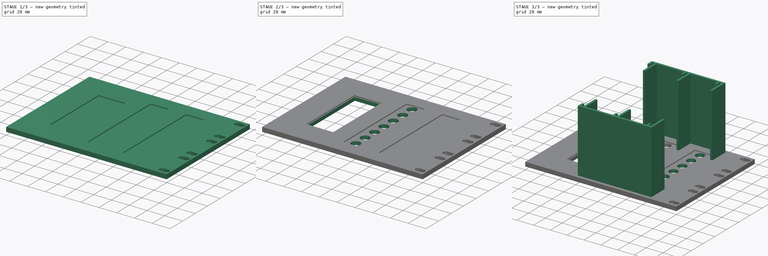
[diagram: build sequence overview — one tinted view per stage of 3, left to right]
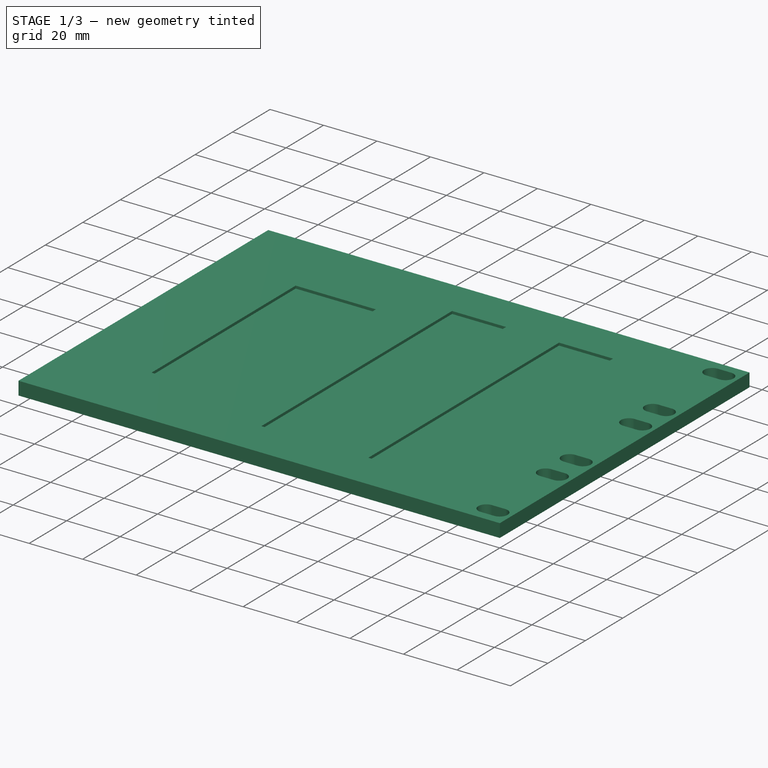
[diagram: stage 1 of 3 — iso view after this stage's code; geometry added in this stage tinted green]
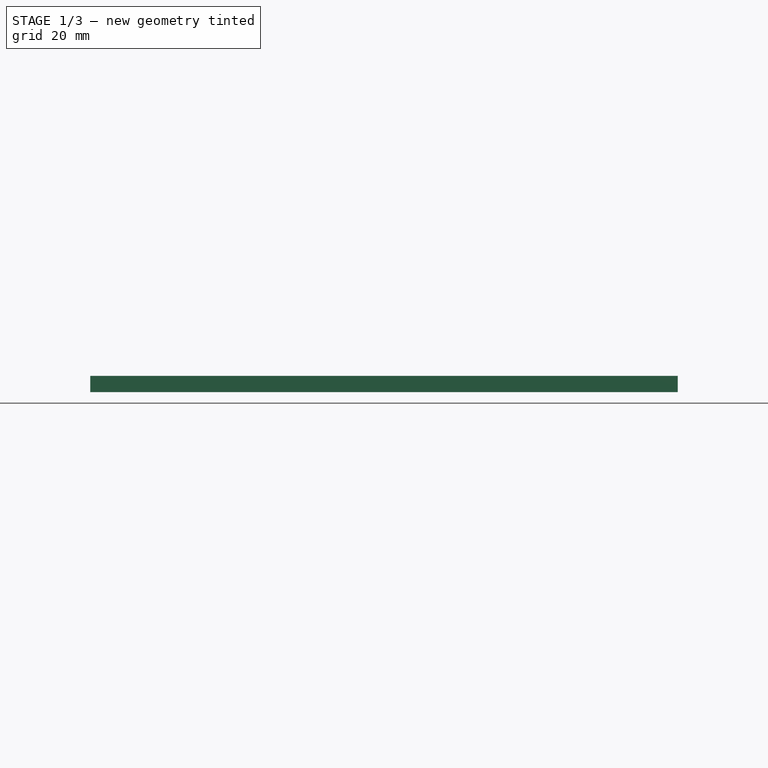
[diagram: stage 1 of 3 — front view after this stage's code; geometry added in this stage tinted green]
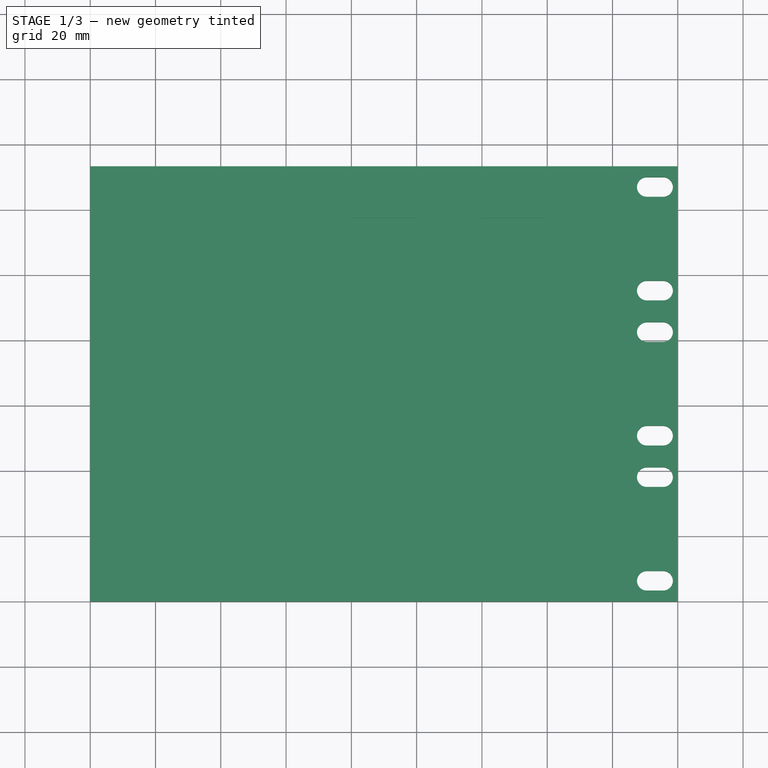
[diagram: stage 1 of 3 — top view after this stage's code; geometry added in this stage tinted green]
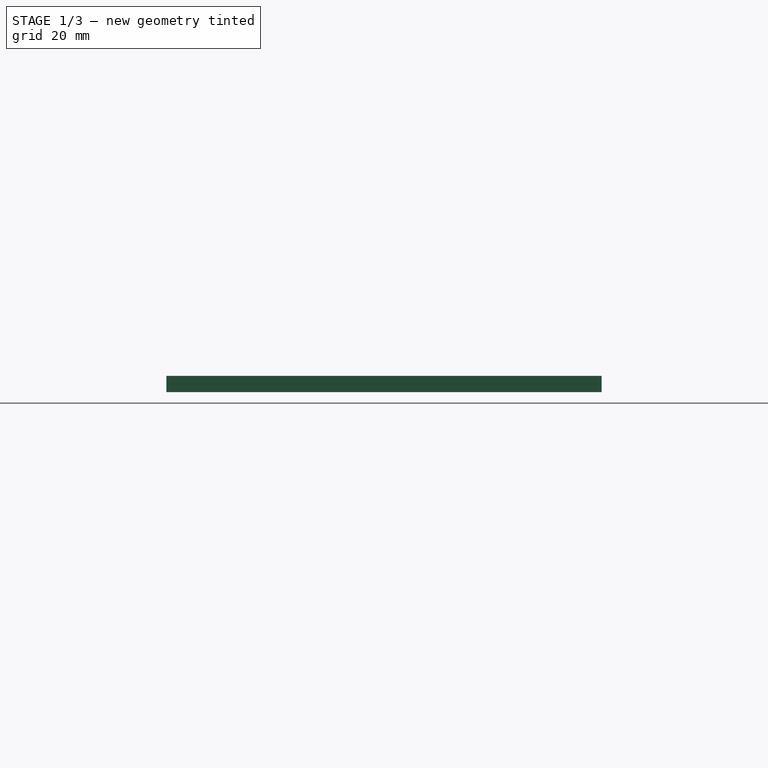
[diagram: stage 1 of 3 — right view after this stage's code; geometry added in this stage tinted green]
FCSTD DOCUMENT  (FreeCAD 1.1R20260325 (Git shallow))
Label: RackMount
License: All rights reserved
LicenseURL: https://en.wikipedia.org/wiki/All_rights_reserved
objects: Sketcher::SketchObject×6, PartDesign::Pocket×4, PartDesign::Pad×2, App::Point×1, PartDesign::Body×1
note: 31 computed .brp shape members not serialized (recipe doc carries the construction recipe); baked Part::Feature solids carry a one-line shape summary decoded from their .brp

FEATURE [App::Point] Origin001
  Role = Origin
FEATURE [Sketcher::SketchObject] Sketch  label="FrontPanel"
  ArcFitTolerance = 1e-06
  AttachmentSupport = -> [Origin]
  ExternalTypes = [0]
  FullyConstrained = true
  MakeInternals = false
  MapMode = 5
  _ExternalGeoVersion = 1
  sketch-geometry (42):
    g0: LineSegment [constr] StartX=0 StartY=0 StartZ=0 EndX=0 EndY=44.45 EndZ=0
    g1: LineSegment [constr] StartX=0 StartY=44.45 StartZ=0 EndX=-180 EndY=44.45 EndZ=0
    g2: LineSegment [constr] StartX=-180 StartY=44.45 StartZ=0 EndX=-180 EndY=0 EndZ=0
    g3: LineSegment [constr] StartX=-180 StartY=0 StartZ=0 EndX=0 EndY=0 EndZ=0
    g4: LineSegment [constr] StartX=0 StartY=44.45 StartZ=0 EndX=0 EndY=88.9 EndZ=0
    g5: LineSegment [constr] StartX=0 StartY=88.9 StartZ=0 EndX=-180 EndY=88.9 EndZ=0
    g6: LineSegment [constr] StartX=-180 StartY=88.9 StartZ=0 EndX=-180 EndY=44.45 EndZ=0
    g7: LineSegment [constr] StartX=-180 StartY=44.45 StartZ=0 EndX=0 EndY=44.45 EndZ=0
    g8: LineSegment [constr] StartX=0 StartY=88.9 StartZ=0 EndX=0 EndY=133.35 EndZ=0
    g9: LineSegment [constr] StartX=0 StartY=133.35 StartZ=0 EndX=-180 EndY=133.35 EndZ=0
    g10: LineSegment [constr] StartX=-180 StartY=133.35 StartZ=0 EndX=-180 EndY=88.9 EndZ=0
    g11: LineSegment [constr] StartX=-180 StartY=88.9 StartZ=0 EndX=0 EndY=88.9 EndZ=0
    g12: LineSegment StartX=0 StartY=0 StartZ=0 EndX=0 EndY=133.35 EndZ=0
    g13: LineSegment StartX=0 StartY=133.35 StartZ=0 EndX=-180 EndY=133.35 EndZ=0
    g14: LineSegment StartX=-180 StartY=133.35 StartZ=0 EndX=-180 EndY=0 EndZ=0
    g15: LineSegment StartX=-180 StartY=0 StartZ=0 EndX=0 EndY=0 EndZ=0
    g16: ArcOfCircle CenterX=-9.5 CenterY=127 CenterZ=0 NormalX=0 NormalY=0 NormalZ=1 AngleXU=0 Radius=3 StartAngle=1.5708 EndAngle=4.71239
    g17: ArcOfCircle CenterX=-4.5 CenterY=127 CenterZ=0 NormalX=0 NormalY=0 NormalZ=1 AngleXU=0 Radius=3 StartAngle=4.71239 EndAngle=7.85398
    g18: LineSegment StartX=-9.5 StartY=130 StartZ=0 EndX=-4.5 EndY=130 EndZ=0
    g19: LineSegment StartX=-9.5 StartY=124 StartZ=0 EndX=-4.5 EndY=124 EndZ=0
    g20: ArcOfCircle CenterX=-9.5 CenterY=95.25 CenterZ=0 NormalX=0 NormalY=0 NormalZ=1 AngleXU=0 Radius=3 StartAngle=1.5708 EndAngle=4.71239
    g21: ArcOfCircle CenterX=-4.5 CenterY=95.25 CenterZ=0 NormalX=0 NormalY=0 NormalZ=1 AngleXU=0 Radius=3 StartAngle=4.71239 EndAngle=7.85398
    g22: LineSegment StartX=-9.5 StartY=98.25 StartZ=0 EndX=-4.5 EndY=98.25 EndZ=0
    g23: LineSegment StartX=-9.5 StartY=92.25 StartZ=0 EndX=-4.5 EndY=92.25 EndZ=0
    g24: ArcOfCircle CenterX=-9.5 CenterY=82.55 CenterZ=0 NormalX=0 NormalY=0 NormalZ=1 AngleXU=0 Radius=3 StartAngle=1.5708 EndAngle=4.71239
    g25: ArcOfCircle CenterX=-4.5 CenterY=82.55 CenterZ=0 NormalX=0 NormalY=0 NormalZ=1 AngleXU=0 Radius=3 StartAngle=4.71239 EndAngle=7.85398
    g26: LineSegment StartX=-9.5 StartY=85.55 StartZ=0 EndX=-4.5 EndY=85.55 EndZ=0
    g27: LineSegment StartX=-9.5 StartY=79.55 StartZ=0 EndX=-4.5 EndY=79.55 EndZ=0
    g28: ArcOfCircle CenterX=-9.5 CenterY=50.8 CenterZ=0 NormalX=0 NormalY=0 NormalZ=1 AngleXU=0 Radius=3 StartAngle=1.5708 EndAngle=4.71239
    g29: ArcOfCircle CenterX=-4.5 CenterY=50.8 CenterZ=0 NormalX=0 NormalY=0 NormalZ=1 AngleXU=0 Radius=3 StartAngle=4.71239 EndAngle=7.85398
    g30: LineSegment StartX=-9.5 StartY=53.8 StartZ=0 EndX=-4.5 EndY=53.8 EndZ=0
    g31: LineSegment StartX=-9.5 StartY=47.8 StartZ=0 EndX=-4.5 EndY=47.8 EndZ=0
    g32: ArcOfCircle CenterX=-9.5 CenterY=38.1 CenterZ=0 NormalX=0 NormalY=0 NormalZ=1 AngleXU=0 Radius=3 StartAngle=1.5708 EndAngle=4.71239
    g33: ArcOfCircle CenterX=-4.5 CenterY=38.1 CenterZ=0 NormalX=0 NormalY=0 NormalZ=1 AngleXU=0 Radius=3 StartAngle=4.71239 EndAngle=7.85398
    g34: LineSegment StartX=-9.5 StartY=41.1 StartZ=0 EndX=-4.5 EndY=41.1 EndZ=0
    g35: LineSegment StartX=-9.5 StartY=35.1 StartZ=0 EndX=-4.5 EndY=35.1 EndZ=0
    g36: ArcOfCircle CenterX=-9.5 CenterY=6.35 CenterZ=0 NormalX=0 NormalY=0 NormalZ=1 AngleXU=0 Radius=3 StartAngle=1.5708 EndAngle=4.71239
    g37: ArcOfCircle CenterX=-4.5 CenterY=6.35 CenterZ=0 NormalX=0 NormalY=0 NormalZ=1 AngleXU=0 Radius=3 StartAngle=4.71239 EndAngle=7.85398
    g38: LineSegment StartX=-9.5 StartY=9.35 StartZ=0 EndX=-4.5 EndY=9.35 EndZ=0
    g39: LineSegment StartX=-9.5 StartY=3.35 StartZ=0 EndX=-4.5 EndY=3.35 EndZ=0
    g40: LineSegment [constr] StartX=-4.5 StartY=133.35 StartZ=0 EndX=-4.5 EndY=0 EndZ=0
    g41: LineSegment [constr] StartX=-9.5 StartY=133.35 StartZ=0 EndX=-9.5 EndY=0 EndZ=0
  constraints (109):
    c: Coincident(g0,g1)
    c: Coincident(g1,g2)
    c: Coincident(g2,g3)
    c: Coincident(g3,g0)
    c: Vertical(g0)
    c: Vertical(g2)
    c: Horizontal(g1)
    c: Horizontal(g3)
    c: Coincident(g0,g-1)
    c: Coincident(g4,g5)
    c: Coincident(g5,g6)
    c: Coincident(g6,g7)
    c: Coincident(g7,g4)
    c: Vertical(g4)
    c: Vertical(g6)
    c: Horizontal(g5)
    c: Coincident(g4,g0)
    c: Coincident(g8,g9)
    c: Coincident(g9,g10)
    c: Coincident(g10,g11)
    c: Coincident(g11,g8)
    c: Vertical(g8)
    c: Vertical(g10)
    c: Horizontal(g9)
    c: Coincident(g8,g4)
    c: Coincident(g5,g10)
    c: Coincident(g1,g6)
    c: DistanceY(g0,g0) = 44.45
    c: DistanceY(g4,g4) = 44.45
    c: DistanceY(g8,g8) = 44.45
    c: Coincident(g12,g13)
    c: Coincident(g13,g14)
    c: Coincident(g14,g15)
    c: Coincident(g15,g12)
    c: Vertical(g12)
    c: Vertical(g14)
    c: Horizontal(g13)
    c: Horizontal(g15)
    c: Coincident(g12,g0)
    c: Coincident(g13,g9)
    c: Tangent(g16,g18) = 1.5708
    c: Tangent(g16,g19) = -1.5708
    c: Tangent(g17,g18) = 1.5708
    c: Tangent(g17,g19) = -1.5708
    c: Equal(g16,g17)
    c: Horizontal(g18)
    c: Tangent(g20,g22) = 1.5708
    c: Tangent(g20,g23) = -1.5708
    c: Tangent(g21,g22) = 1.5708
    c: Tangent(g21,g23) = -1.5708
    c: Equal(g20,g21)
    c: Horizontal(g22)
    c: Tangent(g24,g26) = 1.5708
    c: Tangent(g24,g27) = -1.5708
    c: Tangent(g25,g26) = 1.5708
    c: Tangent(g25,g27) = -1.5708
    c: Equal(g24,g25)
    c: Horizontal(g26)
    c: Tangent(g28,g30) = 1.5708
    c: Tangent(g28,g31) = -1.5708
    c: Tangent(g29,g30) = 1.5708
    c: Tangent(g29,g31) = -1.5708
    c: Equal(g28,g29)
    c: Horizontal(g30)
    c: Tangent(g32,g34) = 1.5708
    c: Tangent(g32,g35) = -1.5708
    c: Tangent(g33,g34) = 1.5708
    c: Tangent(g33,g35) = -1.5708
    c: Equal(g32,g33)
    c: Horizontal(g34)
    c: Tangent(g36,g38) = 1.5708
    c: Tangent(g36,g39) = -1.5708
    c: Tangent(g37,g38) = 1.5708
    c: Tangent(g37,g39) = -1.5708
    c: Equal(g36,g37)
    c: Horizontal(g38)
    c: PointOnObject(g40,g13)
    c: PointOnObject(g40,g15)
    c: Vertical(g40)
    c: PointOnObject(g41,g13)
    c: PointOnObject(g41,g15)
    c: Vertical(g41)
    c: PointOnObject(g16,g41)
    c: PointOnObject(g17,g40)
    c: PointOnObject(g21,g40)
    c: PointOnObject(g25,g40)
    c: PointOnObject(g29,g40)
    c: PointOnObject(g33,g40)
    c: PointOnObject(g37,g40)
    c: PointOnObject(g20,g41)
    c: PointOnObject(g24,g41)
    c: PointOnObject(g28,g41)
    c: PointOnObject(g32,g41)
    c: PointOnObject(g36,g41)
    c: Distance(g40,g41) = 5
    c: Radius(g16) = 3
    c: Radius(g20) = 3
    c: Radius(g24) = 3
    c: Radius(g28) = 3
    c: Radius(g32) = 3
    c: Radius(g36) = 3
    c: Distance(g12,g40) = 4.5
    c: Distance(g17,g13) = 6.35
    c: Distance(g21,g5) = 6.35
    c: Distance(g25,g5) = 6.35
    c: Distance(g29,g1) = 6.35
    c: Distance(g33,g1) = 6.35
    c: Distance(g37,g15) = 6.35
    c: Distance(g12,g14) = 180
FEATURE [PartDesign::Pad] Pad  label="FrontPanelPad"
  Direction = (0,0,1)
  Length = 5
  Length2 = 10
  Profile = -> Sketch
  ReferenceAxis = -> Sketch [N_Axis]
  Refine = true
  SideType = 0
  Suppressed = false
  Type = 0
  Type2 = 0
FEATURE [Sketcher::SketchObject] Sketch001  label="PositionMarkers"
  ArcFitTolerance = 1e-06
  AttachmentSupport = -> [Pad]
  ExternalGeometry = -> [Pad]
  ExternalTypes = [0,0,0,0]
  FullyConstrained = true
  MakeInternals = false
  MapMode = 5
  Placement = pos=(0,0,5) rot=(0,0,1;0rad)
  _ExternalGeoVersion = 1
  sketch-geometry (16):
    g0: LineSegment StartX=-60.2 StartY=117.6 StartZ=0 EndX=-60.2 EndY=15.75 EndZ=0
    g1: LineSegment StartX=-60.2 StartY=15.75 StartZ=0 EndX=-40 EndY=15.75 EndZ=0
    g2: LineSegment StartX=-40 StartY=15.75 StartZ=0 EndX=-40 EndY=117.6 EndZ=0
    g3: LineSegment StartX=-40 StartY=117.6 StartZ=0 EndX=-60.2 EndY=117.6 EndZ=0
    g4: GeomPoint [constr] X=-50.1 Y=66.675 Z=0
    g5: LineSegment [constr] StartX=-180 StartY=66.675 StartZ=0 EndX=0 EndY=66.675 EndZ=0
    g6: LineSegment StartX=-100.2 StartY=117.6 StartZ=0 EndX=-100.2 EndY=15.75 EndZ=0
    g7: LineSegment StartX=-100.2 StartY=15.75 StartZ=0 EndX=-80 EndY=15.75 EndZ=0
    g8: LineSegment StartX=-80 StartY=15.75 StartZ=0 EndX=-80 EndY=117.6 EndZ=0
    g9: LineSegment StartX=-80 StartY=117.6 StartZ=0 EndX=-100.2 EndY=117.6 EndZ=0
    g10: GeomPoint [constr] X=-90.1 Y=66.675 Z=0
    g11: LineSegment StartX=-150 StartY=105.175 StartZ=0 EndX=-150 EndY=28.175 EndZ=0
    g12: LineSegment StartX=-150 StartY=28.175 StartZ=0 EndX=-120 EndY=28.175 EndZ=0
    g13: LineSegment StartX=-120 StartY=28.175 StartZ=0 EndX=-120 EndY=105.175 EndZ=0
    g14: LineSegment StartX=-120 StartY=105.175 StartZ=0 EndX=-150 EndY=105.175 EndZ=0
    g15: GeomPoint [constr] X=-135 Y=66.675 Z=0
  constraints (41):
    c: Coincident(g0,g1)
    c: Coincident(g1,g2)
    c: Coincident(g2,g3)
    c: Coincident(g3,g0)
    c: Vertical(g0)
    c: Vertical(g2)
    c: Horizontal(g1)
    c: Horizontal(g3)
    c: Symmetric(g2,g0,g4)
    c: DistanceY(g0,g0) = 101.85
    c: DistanceX(g3,g3) = 20.2
    c: Symmetric(g-5,g-5,g5)
    c: Symmetric(g-3,g-3,g5)
    c: PointOnObject(g4,g5)
    c: Coincident(g6,g7)
    c: Coincident(g7,g8)
    c: Coincident(g8,g9)
    c: Coincident(g9,g6)
    c: Vertical(g6)
    c: Vertical(g8)
    c: Horizontal(g7)
    c: Horizontal(g9)
    c: Symmetric(g8,g6,g10)
    c: PointOnObject(g10,g5)
    c: DistanceY(g6,g6) = 101.85
    c: DistanceX(g9,g9) = 20.2
    c: Distance(g2,g8) = 40
    c: Distance(g-3,g2) = 40
    c: Coincident(g11,g12)
    c: Coincident(g12,g13)
    c: Coincident(g13,g14)
    c: Coincident(g14,g11)
    c: Vertical(g11)
    c: Vertical(g13)
    c: Horizontal(g12)
    c: Horizontal(g14)
    c: Symmetric(g13,g11,g15)
    c: PointOnObject(g15,g5)
    c: DistanceY(g11,g11) = 77
    c: DistanceX(g14,g14) = 30
    c: Distance(g13,g8) = 40
FEATURE [PartDesign::Pocket] Pocket  label="PositionMarkersPocket"
  BaseFeature = -> Pad
  Direction = (0,0,-1)
  Length = 1
  Length2 = 5
  Profile = -> Sketch001
  ReferenceAxis = -> Sketch001 [N_Axis]
  Refine = true
  SideType = 0
  Suppressed = false
  Type = 0
  Type2 = 0
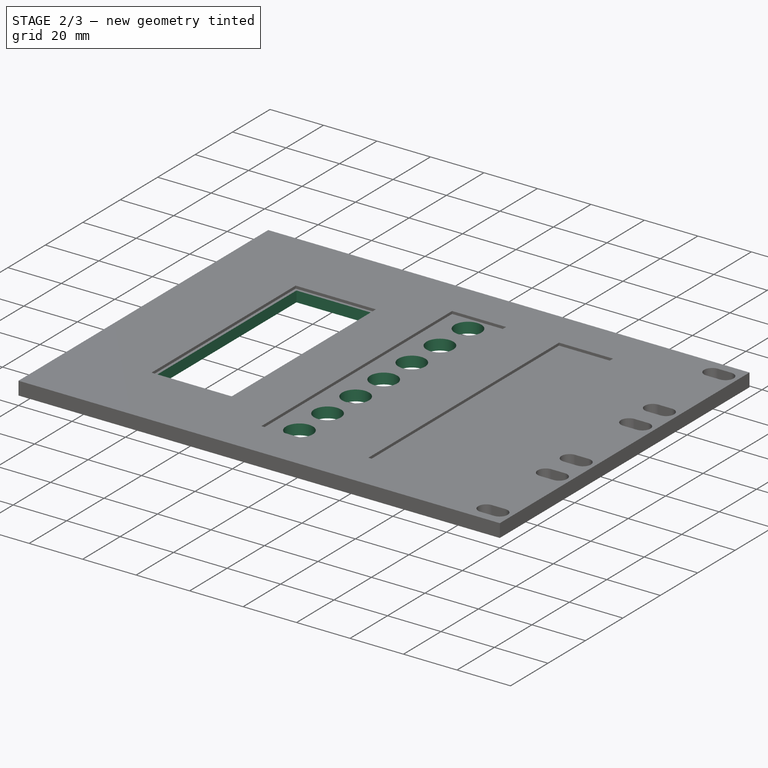
[diagram: stage 2 of 3 — iso view after this stage's code; geometry added in this stage tinted green]
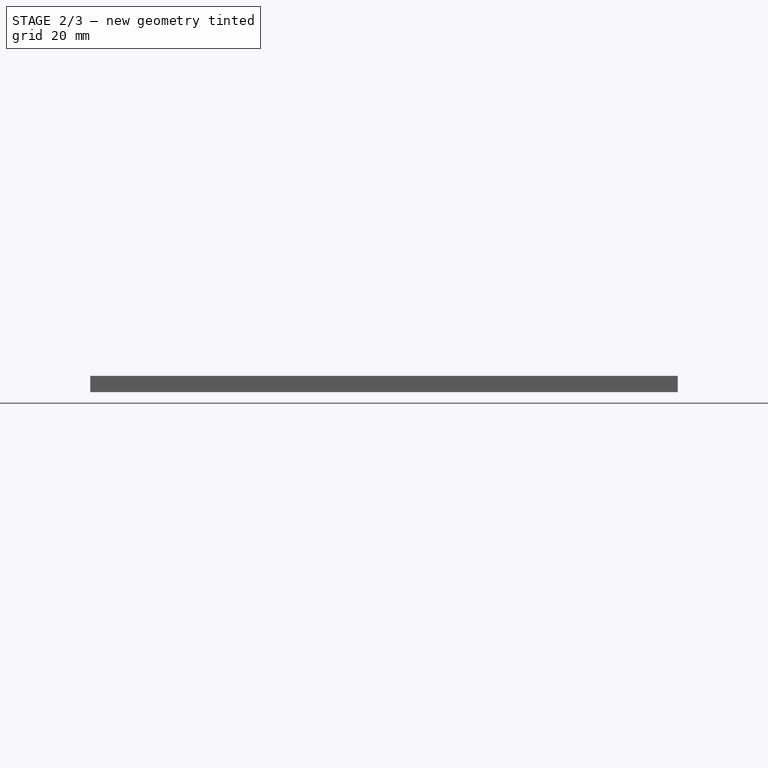
[diagram: stage 2 of 3 — front view after this stage's code; geometry added in this stage tinted green]
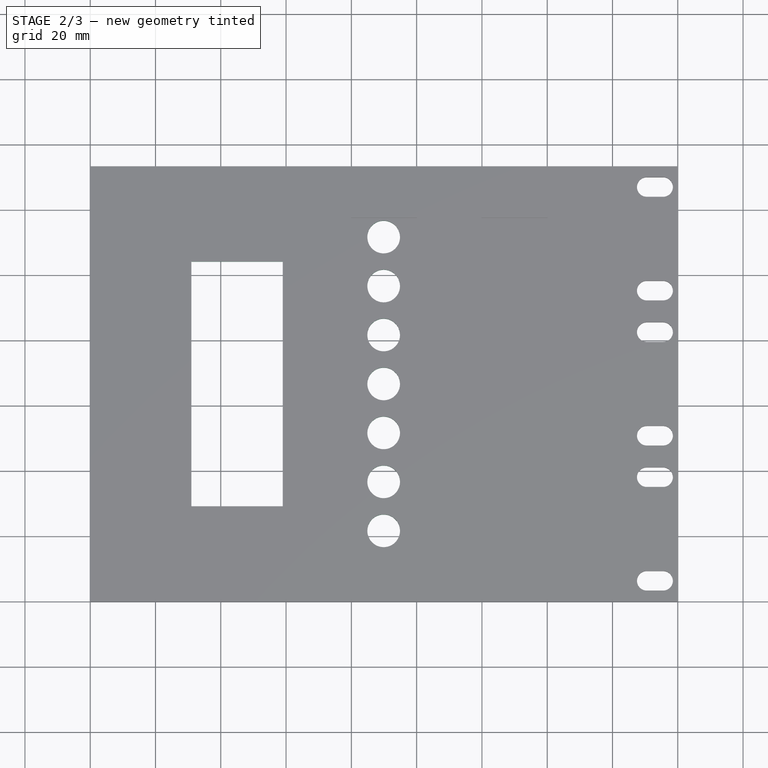
[diagram: stage 2 of 3 — top view after this stage's code; geometry added in this stage tinted green]
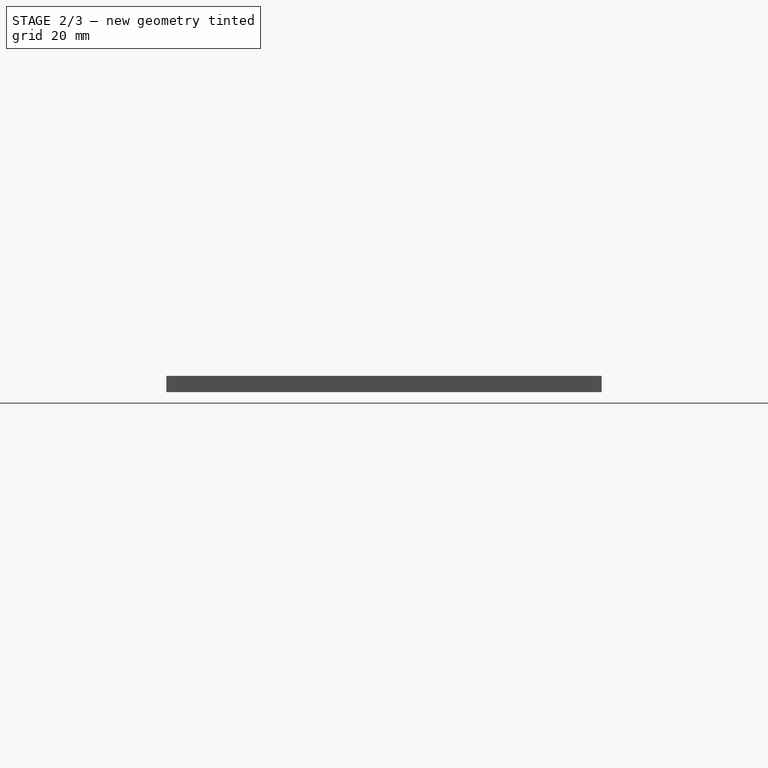
[diagram: stage 2 of 3 — right view after this stage's code; geometry added in this stage tinted green]
FEATURE [Sketcher::SketchObject] Sketch002  label="ZBFrontHole"
  ArcFitTolerance = 1e-06
  AttachmentSupport = -> [Pocket]
  ExternalGeometry = -> [Pocket]
  ExternalTypes = [0,0,0,0]
  FullyConstrained = true
  MakeInternals = false
  MapMode = 5
  Placement = pos=(0,0,4) rot=(0,0,1;0rad)
  _ExternalGeoVersion = 1
  sketch-geometry (4):
    g0: LineSegment StartX=-149 StartY=104.175 StartZ=0 EndX=-149 EndY=29.175 EndZ=0
    g1: LineSegment StartX=-149 StartY=29.175 StartZ=0 EndX=-121 EndY=29.175 EndZ=0
    g2: LineSegment StartX=-121 StartY=29.175 StartZ=0 EndX=-121 EndY=104.175 EndZ=0
    g3: LineSegment StartX=-121 StartY=104.175 StartZ=0 EndX=-149 EndY=104.175 EndZ=0
  constraints (12):
    c: Coincident(g0,g1)
    c: Coincident(g1,g2)
    c: Coincident(g2,g3)
    c: Coincident(g3,g0)
    c: Vertical(g0)
    c: Vertical(g2)
    c: Horizontal(g1)
    c: Horizontal(g3)
    c: Distance(g0,g-5) = 1
    c: Distance(g-4,g2) = 1
    c: Distance(g-6,g1) = 1
    c: Distance(g-3,g3) = 1
FEATURE [PartDesign::Pocket] Pocket001  label="ZBFrontHolePocket"
  BaseFeature = -> Pocket
  Direction = (0,0,-1)
  Length = 5
  Length2 = 5
  Profile = -> Sketch002
  ReferenceAxis = -> Sketch002 [N_Axis]
  Refine = true
  SideType = 0
  Suppressed = false
  Type = 2
  Type2 = 0
FEATURE [Sketcher::SketchObject] Sketch003  label="Drive1Vents"
  ArcFitTolerance = 1e-06
  AttachmentSupport = -> [Pocket001]
  ExternalGeometry = -> [Pocket001]
  ExternalTypes = [0,0,0,0]
  FullyConstrained = true
  MakeInternals = false
  MapMode = 5
  Placement = pos=(0,0,4) rot=(0,0,1;0rad)
  _ExternalGeoVersion = 1
  sketch-geometry (9):
    g0: LineSegment [constr] StartX=-90.1 StartY=117.6 StartZ=0 EndX=-90.1 EndY=15.75 EndZ=0
    g1: LineSegment [constr] StartX=-100.2 StartY=66.675 StartZ=0 EndX=-80 EndY=66.675 EndZ=0
    g2: Circle CenterX=-90.1 CenterY=66.675 CenterZ=0 NormalX=0 NormalY=0 NormalZ=1 AngleXU=0 Radius=5
    g3: Circle CenterX=-90.1 CenterY=81.675 CenterZ=0 NormalX=0 NormalY=0 NormalZ=1 AngleXU=0 Radius=5
    g4: Circle CenterX=-90.1 CenterY=96.675 CenterZ=0 NormalX=0 NormalY=0 NormalZ=1 AngleXU=0 Radius=5
    g5: Circle CenterX=-90.1 CenterY=111.675 CenterZ=0 NormalX=0 NormalY=0 NormalZ=1 AngleXU=0 Radius=5
    g6: Circle CenterX=-90.1 CenterY=51.675 CenterZ=0 NormalX=0 NormalY=0 NormalZ=1 AngleXU=0 Radius=5
    g7: Circle CenterX=-90.1 CenterY=36.675 CenterZ=0 NormalX=0 NormalY=0 NormalZ=1 AngleXU=0 Radius=5
    g8: Circle CenterX=-90.1 CenterY=21.675 CenterZ=0 NormalX=0 NormalY=0 NormalZ=1 AngleXU=0 Radius=5
  constraints (24):
    c: Symmetric(g-6,g-6,g0)
    c: Symmetric(g-5,g-5,g0)
    c: Symmetric(g-3,g-3,g1)
    c: Symmetric(g-4,g-4,g1)
    c: Symmetric(g0,g0,g2)
    c: Diameter(g2) = 10
    c: PointOnObject(g3,g0)
    c: PointOnObject(g4,g0)
    c: PointOnObject(g5,g0)
    c: PointOnObject(g6,g0)
    c: PointOnObject(g7,g0)
    c: PointOnObject(g8,g0)
    c: Diameter(g3) = 10
    c: Diameter(g4) = 10
    c: Diameter(g5) = 10
    c: Diameter(g6) = 10
    c: Diameter(g7) = 10
    c: Diameter(g8) = 10
    c: Distance(g2,g3) = 5
    c: Distance(g3,g4) = 5
    c: Distance(g4,g5) = 5
    c: Distance(g2,g6) = 5
    c: Distance(g6,g7) = 5
    c: Distance(g7,g8) = 5
FEATURE [PartDesign::Pocket] Pocket002  label="Drive1VentsPocket"
  BaseFeature = -> Pocket001
  Direction = (0,0,-1)
  Length = 5
  Length2 = 5
  Profile = -> Sketch003
  ReferenceAxis = -> Sketch003 [N_Axis]
  Refine = true
  SideType = 0
  Suppressed = false
  Type = 2
  Type2 = 0
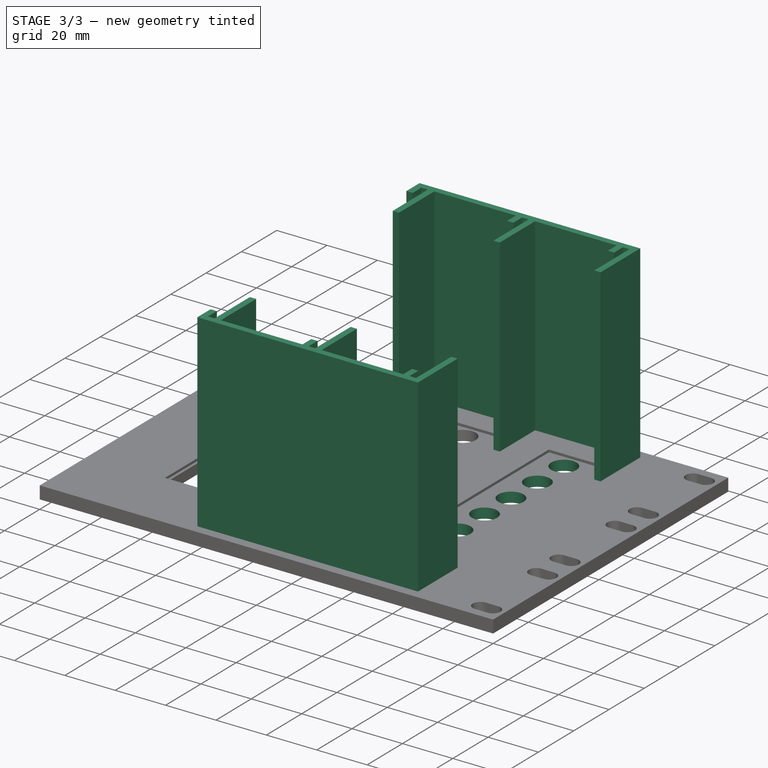
[diagram: stage 3 of 3 — iso view after this stage's code; geometry added in this stage tinted green]
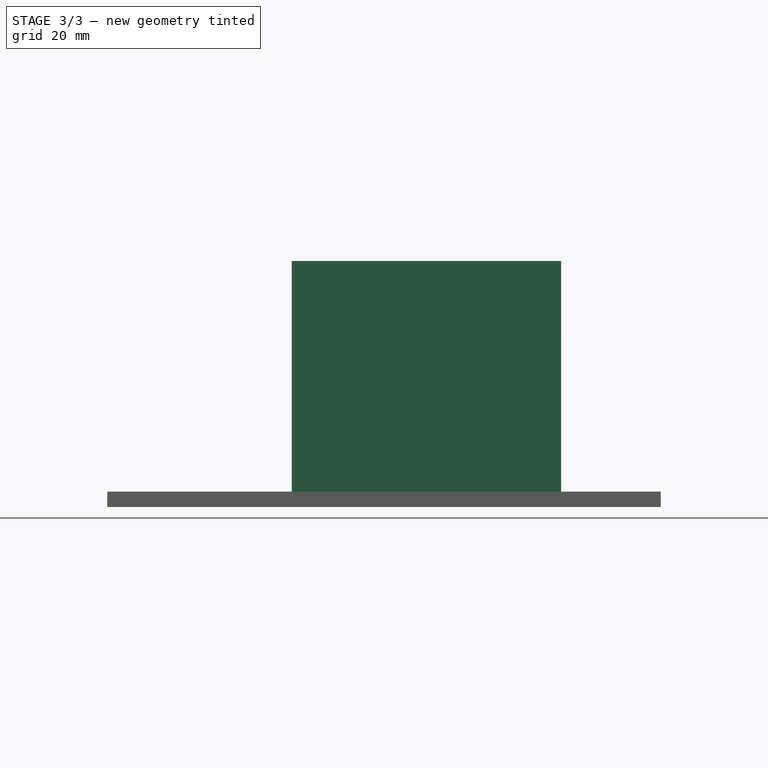
[diagram: stage 3 of 3 — front view after this stage's code; geometry added in this stage tinted green]
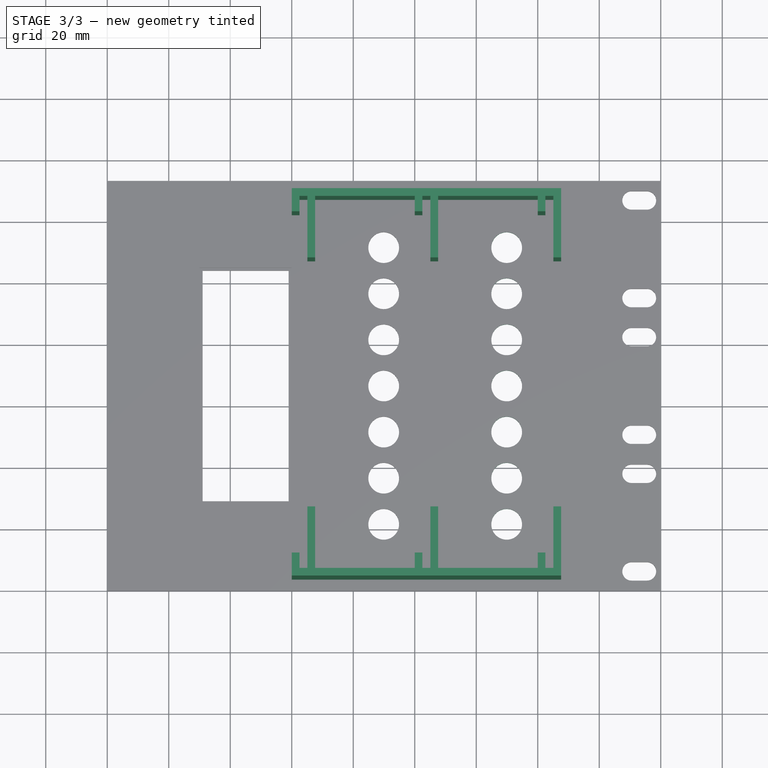
[diagram: stage 3 of 3 — top view after this stage's code; geometry added in this stage tinted green]
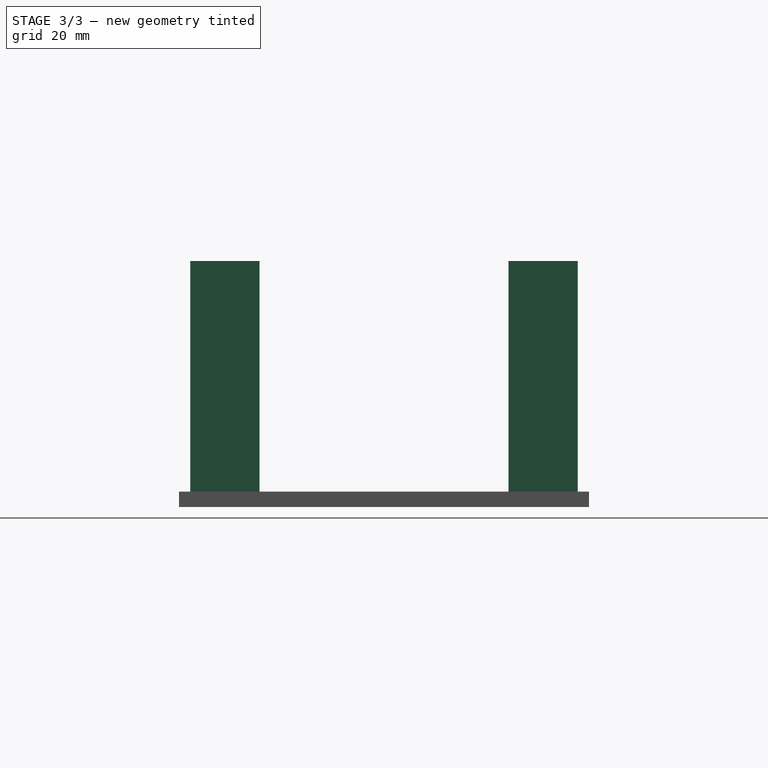
[diagram: stage 3 of 3 — right view after this stage's code; geometry added in this stage tinted green]
FEATURE [Sketcher::SketchObject] Sketch004  label="Drive2Vents"
  ArcFitTolerance = 1e-06
  AttachmentSupport = -> [Pocket002]
  ExternalGeometry = -> [Pocket002]
  ExternalTypes = [0,0,0,0]
  FullyConstrained = true
  MakeInternals = false
  MapMode = 5
  Placement = pos=(0,0,4) rot=(0,0,1;0rad)
  _ExternalGeoVersion = 1
  sketch-geometry (9):
    g0: LineSegment [constr] StartX=-50.1 StartY=117.6 StartZ=0 EndX=-50.1 EndY=15.75 EndZ=0
    g1: LineSegment [constr] StartX=-60.2 StartY=66.675 StartZ=0 EndX=-40 EndY=66.675 EndZ=0
    g2: Circle CenterX=-50.1 CenterY=66.675 CenterZ=0 NormalX=0 NormalY=0 NormalZ=1 AngleXU=0 Radius=5
    g3: Circle CenterX=-50.1 CenterY=81.675 CenterZ=0 NormalX=0 NormalY=0 NormalZ=1 AngleXU=0 Radius=5
    g4: Circle CenterX=-50.1 CenterY=96.675 CenterZ=0 NormalX=0 NormalY=0 NormalZ=1 AngleXU=0 Radius=5
    g5: Circle CenterX=-50.1 CenterY=111.675 CenterZ=0 NormalX=0 NormalY=0 NormalZ=1 AngleXU=0 Radius=5
    g6: Circle CenterX=-50.1 CenterY=51.675 CenterZ=0 NormalX=0 NormalY=0 NormalZ=1 AngleXU=0 Radius=5
    g7: Circle CenterX=-50.1 CenterY=36.675 CenterZ=0 NormalX=0 NormalY=0 NormalZ=1 AngleXU=0 Radius=5
    g8: Circle CenterX=-50.1 CenterY=21.675 CenterZ=0 NormalX=0 NormalY=0 NormalZ=1 AngleXU=0 Radius=5
  constraints (24):
    c: Symmetric(g-3,g-3,g0)
    c: Symmetric(g-6,g-6,g0)
    c: Symmetric(g-4,g-4,g1)
    c: Symmetric(g-5,g-5,g1)
    c: Symmetric(g0,g0,g2)
    c: PointOnObject(g3,g0)
    c: PointOnObject(g4,g0)
    c: PointOnObject(g5,g0)
    c: PointOnObject(g6,g0)
    c: PointOnObject(g7,g0)
    c: PointOnObject(g8,g0)
    c: Diameter(g5) = 10
    c: Diameter(g4) = 10
    c: Diameter(g3) = 10
    c: Diameter(g2) = 10
    c: Diameter(g6) = 10
    c: Diameter(g7) = 10
    c: Diameter(g8) = 10
    c: Distance(g2,g3) = 5
    c: Distance(g3,g4) = 5
    c: Distance(g4,g5) = 5
    c: Distance(g2,g6) = 5
    c: Distance(g6,g7) = 5
    c: Distance(g7,g8) = 5
FEATURE [PartDesign::Pocket] Pocket003  label="Drive2VentsPocket"
  BaseFeature = -> Pocket002
  Direction = (0,0,-1)
  Length = 5
  Length2 = 5
  Profile = -> Sketch004
  ReferenceAxis = -> Sketch004 [N_Axis]
  Refine = true
  SideType = 0
  Suppressed = false
  Type = 2
  Type2 = 0
FEATURE [Sketcher::SketchObject] Sketch005  label="MountFrames"
  ArcFitTolerance = 1e-06
  AttachmentSupport = -> [Pocket003]
  ExternalGeometry = -> [Pocket003]
  ExternalTypes = [0,0,0,0,0,0,0,0,0,0,0,0,0,0,0,0]
  FullyConstrained = true
  MakeInternals = false
  MapMode = 5
  Placement = pos=(0,0,5) rot=(0,0,1;0rad)
  _ExternalGeoVersion = 1
  sketch-geometry (55):
    g0: LineSegment [constr] StartX=-180 StartY=127.175 StartZ=0 EndX=0 EndY=127.175 EndZ=0
    g1: LineSegment [constr] StartX=-180 StartY=6.175 StartZ=0 EndX=0 EndY=6.175 EndZ=0
    g2: LineSegment [constr] StartX=-180 StartY=66.675 StartZ=0 EndX=0 EndY=66.675 EndZ=0
    g3: LineSegment StartX=-32.4 StartY=129.675 StartZ=0 EndX=-120 EndY=129.675 EndZ=0
    g4: LineSegment StartX=-120 StartY=129.675 StartZ=0 EndX=-120 EndY=122.175 EndZ=0
    g5: LineSegment StartX=-120 StartY=122.175 StartZ=0 EndX=-117.5 EndY=122.175 EndZ=0
    g6: LineSegment StartX=-117.5 StartY=122.175 StartZ=0 EndX=-117.5 EndY=127.175 EndZ=0
    g7: LineSegment StartX=-117.5 StartY=127.175 StartZ=0 EndX=-114.9 EndY=127.175 EndZ=0
    g8: LineSegment StartX=-114.9 StartY=127.175 StartZ=0 EndX=-114.9 EndY=107.175 EndZ=0
    g9: LineSegment StartX=-114.9 StartY=107.175 StartZ=0 EndX=-112.4 EndY=107.175 EndZ=0
    g10: LineSegment StartX=-112.4 StartY=107.175 StartZ=0 EndX=-112.4 EndY=127.175 EndZ=0
    g11: LineSegment StartX=-112.4 StartY=127.175 StartZ=0 EndX=-80 EndY=127.175 EndZ=0
    g12: LineSegment StartX=-80 StartY=127.175 StartZ=0 EndX=-80 EndY=122.175 EndZ=0
    g13: LineSegment StartX=-80 StartY=122.175 StartZ=0 EndX=-77.5 EndY=122.175 EndZ=0
    g14: LineSegment StartX=-77.5 StartY=122.175 StartZ=0 EndX=-77.5 EndY=127.175 EndZ=0
    g15: LineSegment StartX=-77.5 StartY=127.175 StartZ=0 EndX=-74.9 EndY=127.175 EndZ=0
    g16: LineSegment StartX=-74.9 StartY=127.175 StartZ=0 EndX=-74.9 EndY=107.175 EndZ=0
    g17: LineSegment StartX=-74.9 StartY=107.175 StartZ=0 EndX=-72.4 EndY=107.175 EndZ=0
    g18: LineSegment StartX=-72.4 StartY=107.175 StartZ=0 EndX=-72.4 EndY=127.175 EndZ=0
    g19: LineSegment StartX=-72.4 StartY=127.175 StartZ=0 EndX=-40 EndY=127.175 EndZ=0
    g20: LineSegment StartX=-40 StartY=127.175 StartZ=0 EndX=-40 EndY=122.175 EndZ=0
    g21: LineSegment StartX=-40 StartY=122.175 StartZ=0 EndX=-37.5 EndY=122.175 EndZ=0
    g22: LineSegment StartX=-37.5 StartY=122.175 StartZ=0 EndX=-37.5 EndY=127.175 EndZ=0
    g23: LineSegment StartX=-37.5 StartY=127.175 StartZ=0 EndX=-34.9 EndY=127.175 EndZ=0
    g24: LineSegment StartX=-34.9 StartY=127.175 StartZ=0 EndX=-34.9 EndY=107.175 EndZ=0
    g25: LineSegment StartX=-34.9 StartY=107.175 StartZ=0 EndX=-32.4 EndY=107.175 EndZ=0
    g26: LineSegment StartX=-32.4 StartY=107.175 StartZ=0 EndX=-32.4 EndY=129.675 EndZ=0
    g27: LineSegment [constr] StartX=-180 StartY=122.175 StartZ=0 EndX=0 EndY=122.175 EndZ=0
    g28: LineSegment [constr] StartX=-180 StartY=107.175 StartZ=0 EndX=0 EndY=107.175 EndZ=0
    g29: LineSegment [constr] StartX=-180 StartY=26.175 StartZ=0 EndX=0 EndY=26.175 EndZ=0
    g30: LineSegment [constr] StartX=-180 StartY=11.175 StartZ=0 EndX=0 EndY=11.175 EndZ=0
    g31: LineSegment StartX=-32.4 StartY=3.675 StartZ=0 EndX=-32.4 EndY=26.175 EndZ=0
    g32: LineSegment StartX=-32.4 StartY=26.175 StartZ=0 EndX=-34.9 EndY=26.175 EndZ=0
    g33: LineSegment StartX=-34.9 StartY=26.175 StartZ=0 EndX=-34.9 EndY=6.175 EndZ=0
    g34: LineSegment StartX=-34.9 StartY=6.175 StartZ=0 EndX=-37.5 EndY=6.175 EndZ=0
    g35: LineSegment StartX=-37.5 StartY=6.175 StartZ=0 EndX=-37.5 EndY=11.175 EndZ=0
    g36: LineSegment StartX=-37.5 StartY=11.175 StartZ=0 EndX=-40 EndY=11.175 EndZ=0
    g37: LineSegment StartX=-40 StartY=11.175 StartZ=0 EndX=-40 EndY=6.175 EndZ=0
    g38: LineSegment StartX=-40 StartY=6.175 StartZ=0 EndX=-72.4 EndY=6.175 EndZ=0
    g39: LineSegment StartX=-72.4 StartY=6.175 StartZ=0 EndX=-72.4 EndY=26.175 EndZ=0
    g40: LineSegment StartX=-72.4 StartY=26.175 StartZ=0 EndX=-74.9 EndY=26.175 EndZ=0
    g41: LineSegment StartX=-74.9 StartY=26.175 StartZ=0 EndX=-74.9 EndY=6.175 EndZ=0
    g42: LineSegment StartX=-74.9 StartY=6.175 StartZ=0 EndX=-77.5 EndY=6.175 EndZ=0
    g43: LineSegment StartX=-77.5 StartY=6.175 StartZ=0 EndX=-77.5 EndY=11.175 EndZ=0
    g44: LineSegment StartX=-77.5 StartY=11.175 StartZ=0 EndX=-80 EndY=11.175 EndZ=0
    g45: LineSegment StartX=-80 StartY=11.175 StartZ=0 EndX=-80 EndY=6.175 EndZ=0
    g46: LineSegment StartX=-80 StartY=6.175 StartZ=0 EndX=-112.4 EndY=6.175 EndZ=0
    g47: LineSegment StartX=-112.4 StartY=6.175 StartZ=0 EndX=-112.4 EndY=26.175 EndZ=0
    g48: LineSegment StartX=-112.4 StartY=26.175 StartZ=0 EndX=-114.9 EndY=26.175 EndZ=0
    g49: LineSegment StartX=-114.9 StartY=26.175 StartZ=0 EndX=-114.9 EndY=6.175 EndZ=0
    g50: LineSegment StartX=-114.9 StartY=6.175 StartZ=0 EndX=-117.5 EndY=6.175 EndZ=0
    g51: LineSegment StartX=-117.5 StartY=6.175 StartZ=0 EndX=-117.5 EndY=11.175 EndZ=0
    g52: LineSegment StartX=-117.5 StartY=11.175 StartZ=0 EndX=-120 EndY=11.175 EndZ=0
    g53: LineSegment StartX=-120 StartY=11.175 StartZ=0 EndX=-120 EndY=3.675 EndZ=0
    g54: LineSegment StartX=-120 StartY=3.675 StartZ=0 EndX=-32.4 EndY=3.675 EndZ=0
  constraints (170):
    c: PointOnObject(g0,g-12)
    c: PointOnObject(g0,g-13)
    c: PointOnObject(g1,g-12)
    c: PointOnObject(g1,g-13)
    c: Symmetric(g-12,g-12,g2)
    c: Symmetric(g-13,g-13,g2)
    c: Distance(g1,g2) = 60.5
    c: Distance(g0,g2) = 60.5
    c: Horizontal(g3)
    c: Coincident(g3,g4)
    c: Vertical(g4)
    c: Coincident(g4,g5)
    c: Horizontal(g5)
    c: Coincident(g5,g6)
    c: PointOnObject(g6,g0)
    c: Vertical(g6)
    c: Coincident(g6,g7)
    c: PointOnObject(g7,g0)
    c: Horizontal(g7)
    c: Coincident(g7,g8)
    c: Vertical(g8)
    c: Coincident(g8,g9)
    c: Coincident(g9,g10)
    c: PointOnObject(g10,g0)
    c: Vertical(g10)
    c: Coincident(g10,g11)
    c: PointOnObject(g11,g0)
    c: Coincident(g11,g12)
    c: Vertical(g12)
    c: Coincident(g12,g13)
    c: Coincident(g13,g14)
    c: PointOnObject(g14,g0)
    c: Vertical(g14)
    c: Coincident(g14,g15)
    c: PointOnObject(g15,g0)
    c: Coincident(g15,g16)
    c: Vertical(g16)
    c: Coincident(g16,g17)
    c: Horizontal(g17)
    c: Coincident(g17,g18)
    c: PointOnObject(g18,g0)
    c: Vertical(g18)
    c: Coincident(g18,g19)
    c: PointOnObject(g19,g0)
    c: Coincident(g19,g20)
    c: Vertical(g20)
    c: Coincident(g20,g21)
    c: Horizontal(g21)
    c: Coincident(g21,g22)
    c: PointOnObject(g22,g0)
    c: Vertical(g22)
    c: Coincident(g22,g23)
    c: PointOnObject(g23,g0)
    c: Coincident(g23,g24)
    c: Vertical(g24)
    c: Coincident(g24,g25)
    c: Coincident(g25,g26)
    c: Coincident(g26,g3)
    c: Vertical(g26)
    c: Distance(g7,g7) = 2.6
    c: Distance(g15,g15) = 2.6
    c: Distance(g23,g23) = 2.6
    c: Horizontal(g9)
    c: Horizontal(g13)
    c: Horizontal(g25)
    c: Distance(g5,g5) = 2.5
    c: Distance(g9,g9) = 2.5
    c: Distance(g13,g13) = 2.5
    c: Distance(g17,g17) = 2.5
    c: Distance(g21,g21) = 2.5
    c: Distance(g25,g25) = 2.5
    c: Distance(g3,g0) = 2.5
    c: PointOnObject(g27,g-12)
    c: PointOnObject(g27,g-13)
    c: Horizontal(g27)
    c: PointOnObject(g28,g-12)
    c: PointOnObject(g28,g-13)
    c: Horizontal(g28)
    c: PointOnObject(g29,g-12)
    c: PointOnObject(g29,g-13)
    c: PointOnObject(g30,g-12)
    c: PointOnObject(g30,g-13)
    c: PointOnObject(g4,g27)
    c: PointOnObject(g8,g28)
    c: PointOnObject(g12,g27)
    c: PointOnObject(g16,g28)
    c: PointOnObject(g20,g27)
    c: PointOnObject(g24,g28)
    c: DistanceX(g-18,g4) = 0
    c: DistanceX(g-7,g12) = 0
    c: DistanceX(g-5,g20) = 0
    c: Distance(g27,g0) = 5
    c: Distance(g28,g0) = 20
    c: PointOnObject(g31,g29)
    c: Vertical(g31)
    c: Coincident(g31,g32)
    c: PointOnObject(g32,g29)
    c: Horizontal(g32)
    c: Coincident(g32,g33)
    c: PointOnObject(g33,g1)
    c: Vertical(g33)
    c: Coincident(g33,g34)
    c: PointOnObject(g34,g1)
    c: Coincident(g34,g35)
    c: PointOnObject(g35,g30)
    c: Vertical(g35)
    c: Coincident(g35,g36)
    c: PointOnObject(g36,g30)
    c: Horizontal(g36)
    c: Coincident(g36,g37)
    c: PointOnObject(g37,g1)
    c: Vertical(g37)
    c: Coincident(g37,g38)
    c: PointOnObject(g38,g1)
    c: Coincident(g38,g39)
    c: PointOnObject(g39,g29)
    c: Vertical(g39)
    c: Coincident(g39,g40)
    c: PointOnObject(g40,g29)
    c: Coincident(g40,g41)
    c: PointOnObject(g41,g1)
    c: Vertical(g41)
    c: Coincident(g41,g42)
    c: PointOnObject(g42,g1)
    c: Horizontal(g42)
    c: Coincident(g42,g43)
    c: PointOnObject(g43,g30)
    c: Vertical(g43)
    c: Coincident(g43,g44)
    c: PointOnObject(g44,g30)
    c: Coincident(g44,g45)
    c: PointOnObject(g45,g1)
    c: Vertical(g45)
    c: Coincident(g45,g46)
    c: PointOnObject(g46,g1)
    c: Coincident(g46,g47)
    c: PointOnObject(g47,g29)
    c: Vertical(g47)
    c: Coincident(g47,g48)
    c: PointOnObject(g48,g29)
    c: Coincident(g48,g49)
    c: PointOnObject(g49,g1)
    c: Vertical(g49)
    c: Coincident(g49,g50)
    c: PointOnObject(g50,g1)
    c: Coincident(g50,g51)
    c: PointOnObject(g51,g30)
    c: Vertical(g51)
    c: Coincident(g51,g52)
    c: PointOnObject(g52,g30)
    c: Coincident(g52,g53)
    c: Vertical(g53)
    c: Coincident(g53,g54)
    c: Coincident(g54,g31)
    c: Horizontal(g54)
    c: Distance(g48,g48) = 2.5
    c: Distance(g50,g50) = 2.6
    c: Distance(g52,g52) = 2.5
    c: Distance(g40,g40) = 2.5
    c: Distance(g42,g42) = 2.6
    c: Distance(g44,g44) = 2.5
    c: Distance(g32,g32) = 2.5
    c: Distance(g34,g34) = 2.6
    c: Distance(g36,g36) = 2.5
    c: Distance(g30,g1) = 5
    c: Distance(g29,g1) = 20
    c: DistanceX(g-18,g52) = 0
    c: DistanceX(g-9,g44) = 0
    c: DistanceX(g-10,g36) = 0
    c: Distance(g1,g54) = 2.5
FEATURE [PartDesign::Pad] Pad001  label="MountFramesPad"
  BaseFeature = -> Pocket003
  Direction = (0,0,1)
  Length = 75
  Length2 = 10
  Profile = -> Sketch005
  ReferenceAxis = -> Sketch005 [N_Axis]
  Refine = true
  SideType = 0
  Suppressed = false
  Type = 0
  Type2 = 0
FEATURE [PartDesign::Body] Body  label="Frame"
  AllowCompound = true
  Group = -> [Sketch,Pad,Sketch001,Pocket,Sketch002,Pocket001,Sketch003,Pocket002,Sketch004,Pocket003,Sketch005,Pad001]
  Origin = -> Origin
  Tip = -> Pad001
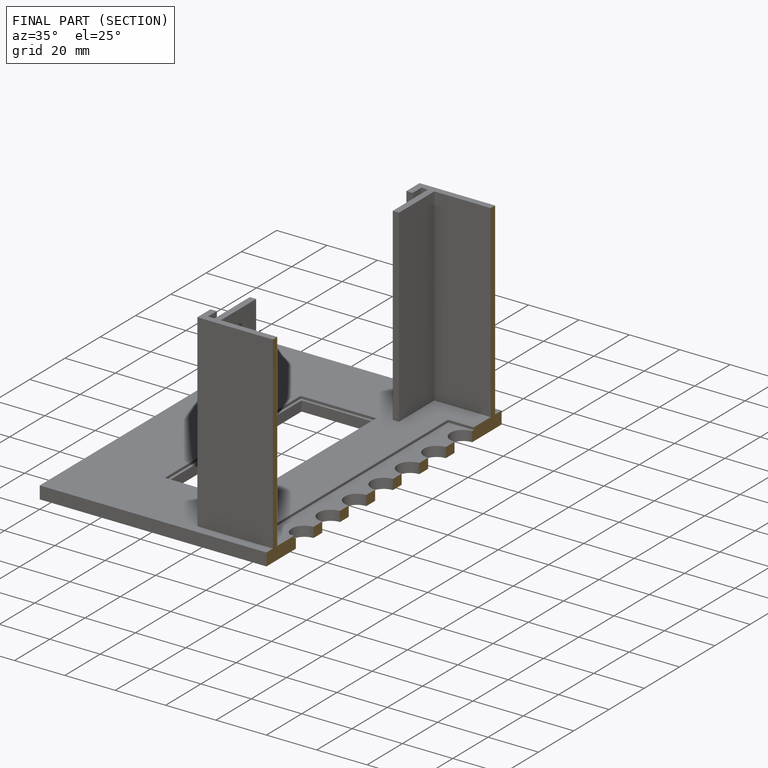
[diagram: finished part — half-section view (interior)]
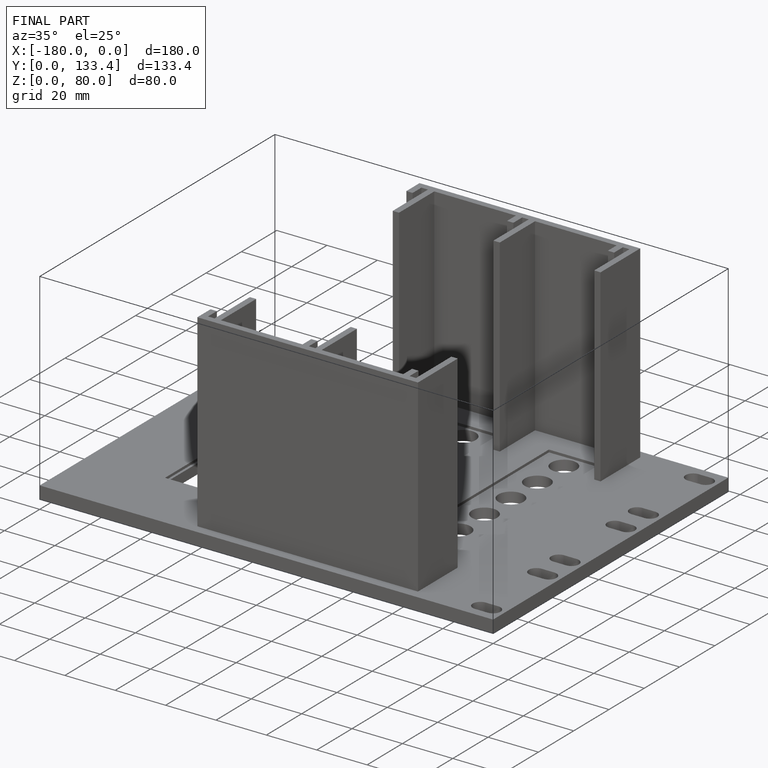
[diagram: finished part — iso view with bounding-box wireframe]
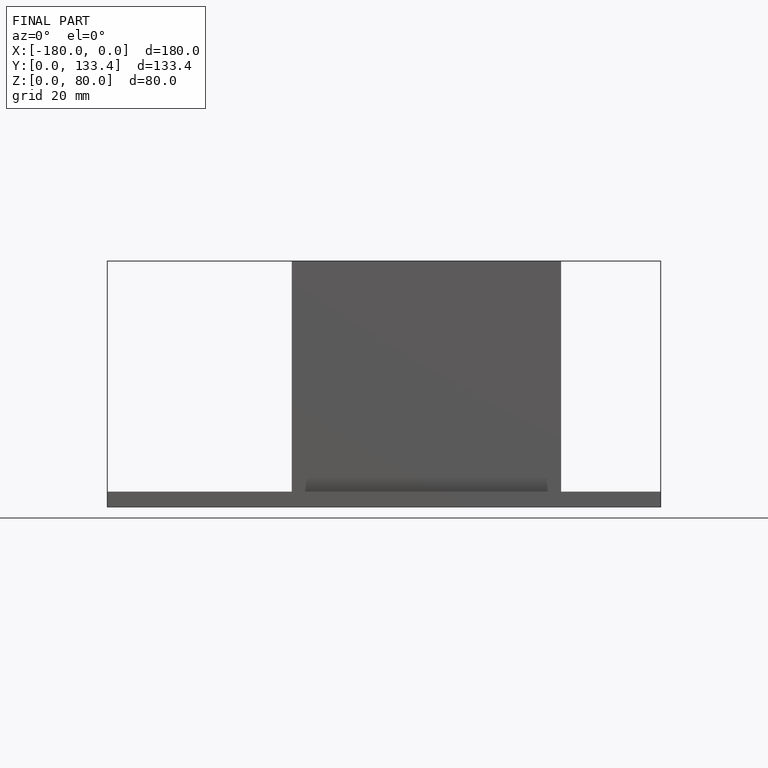
[diagram: finished part — front view with bounding-box wireframe]
